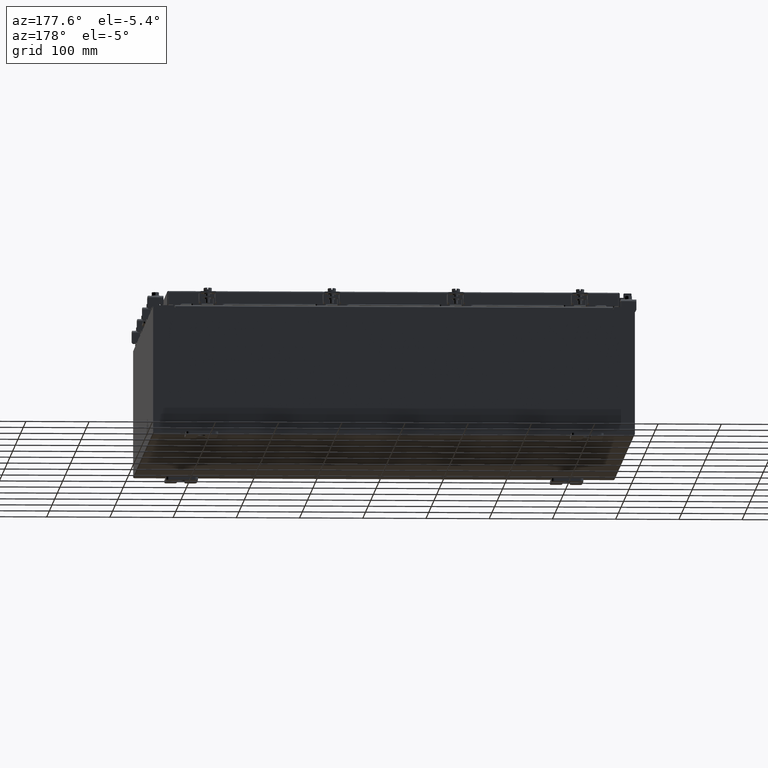
[diagram: clean part render]
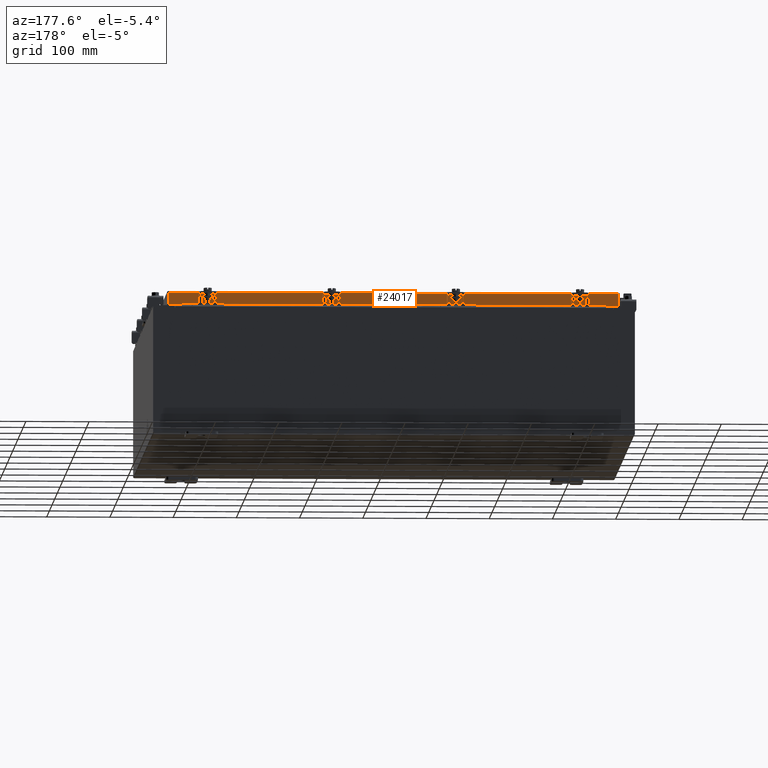
[diagram: same view with one face highlighted and labeled with its STEP entity id]
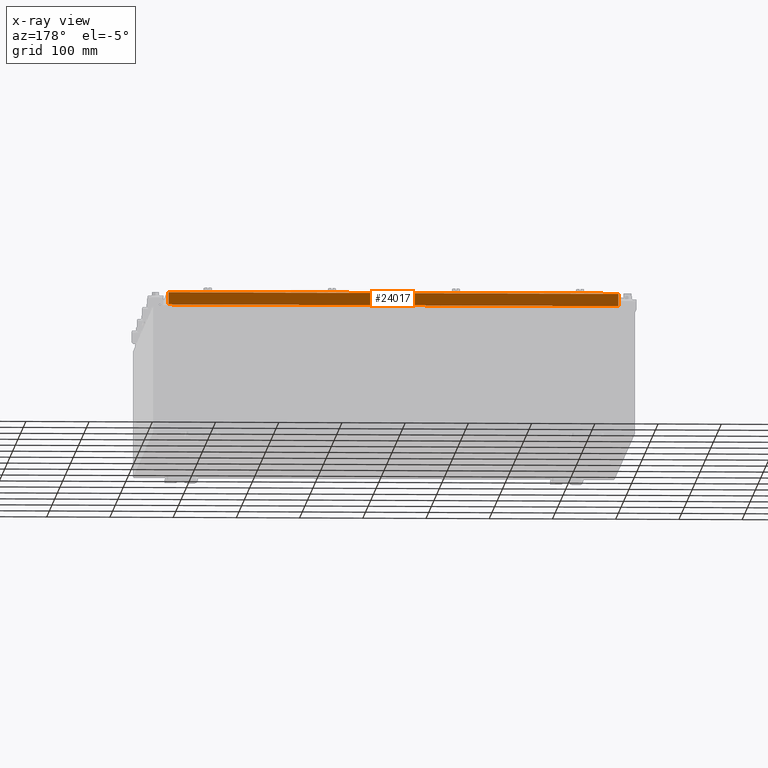
[diagram: x-ray of the same camera — body ghosted, the highlighted face saturated]
A machine part, auxiliary view. The second image highlights one B-rep face of the part: STEP entity #24017.
The next image is the same camera in x-ray: the body ghosted, the highlighted face saturated — about 0% of this face is hidden behind the body in this view.
In plain terms, the highlighted planar face has unit normal (0, -1, -0).
Its self-contained STEP definition (entity closure, byte-faithful):
#244 = EDGE_CURVE ( 'NONE', #9193, #8855, #17366, .T. ) ;
#469 = ORIENTED_EDGE ( 'NONE', *, *, #6053, .F. ) ;
#558 = CARTESIAN_POINT ( 'NONE',  ( -13.25515786437626500, 14.09399999999999200, -0.8500000000000054200 ) ) ;
#996 = LINE ( 'NONE', #3109, #20302 ) ;
#1132 = EDGE_CURVE ( 'NONE', #23903, #10713, #22019, .T. ) ;
#1895 = DIRECTION ( 'NONE',  ( 1.000000000000000000, -0.0000000000000000000, -0.0000000000000000000 ) ) ;
#1926 = AXIS2_PLACEMENT_3D ( 'NONE', #22876, #17322, #6147 ) ;
#2145 = VECTOR ( 'NONE', #1895, 39.37007874015748100 ) ;
#3057 = VECTOR ( 'NONE', #4403, 39.37007874015748100 ) ;
#3109 = CARTESIAN_POINT ( 'NONE',  ( -14.00515786437626900, 14.09399999999999900, -0.07470000000000015500 ) ) ;
#3848 = CARTESIAN_POINT ( 'NONE',  ( -14.09399999999999900, 14.09399999999999900, -0.08770000000000026400 ) ) ;
#4403 = DIRECTION ( 'NONE',  ( 0.0000000000000000000, 2.818880942772347100E-015, -1.000000000000000000 ) ) ;
#4991 = FACE_OUTER_BOUND ( 'NONE', #24162, .T. ) ;
#5056 = DIRECTION ( 'NONE',  ( 1.000000000000000000, 4.379057701015054300E-047, 1.259898677367511900E-016 ) ) ;
#6053 = EDGE_CURVE ( 'NONE', #7983, #19494, #996, .T. ) ;
#6147 = DIRECTION ( 'NONE',  ( 0.0000000000000000000, 2.818880942772347100E-015, -1.000000000000000000 ) ) ;
#7203 = CARTESIAN_POINT ( 'NONE',  ( 14.00515786437626500, 14.09399999999999900, -0.08770000000000026400 ) ) ;
#7381 = DIRECTION ( 'NONE',  ( 1.000000000000000000, 4.379057701015054300E-047, 1.259898677367511900E-016 ) ) ;
#7983 = VERTEX_POINT ( 'NONE', #20179 ) ;
#8855 = VERTEX_POINT ( 'NONE', #11531 ) ;
#9031 = LINE ( 'NONE', #3848, #23363 ) ;
#9083 = LINE ( 'NONE', #20461, #23412 ) ;
#9193 = VERTEX_POINT ( 'NONE', #7203 ) ;
#10601 = DIRECTION ( 'NONE',  ( -0.0000000000000000000, 2.818880942772347100E-015, -1.000000000000000000 ) ) ;
#10713 = VERTEX_POINT ( 'NONE', #20485 ) ;
#11417 = CARTESIAN_POINT ( 'NONE',  ( -13.25515786437626400, 14.09399999999999200, -0.8500000000000054200 ) ) ;
#11531 = CARTESIAN_POINT ( 'NONE',  ( 14.00515786437626500, 14.09400000000000100, -0.8499999999999999800 ) ) ;
#12517 = ORIENTED_EDGE ( 'NONE', *, *, #14223, .F. ) ;
#14223 = EDGE_CURVE ( 'NONE', #10713, #8855, #23075, .T. ) ;
#14456 = EDGE_CURVE ( 'NONE', #9193, #7983, #9031, .T. ) ;
#14991 = DIRECTION ( 'NONE',  ( -1.000000000000000000, -3.551504371455365500E-031, -9.680575543624972600E-046 ) ) ;
#15430 = PLANE ( 'NONE',  #1926 ) ;
#16571 = ORIENTED_EDGE ( 'NONE', *, *, #1132, .F. ) ;
#17322 = DIRECTION ( 'NONE',  ( 3.551504371455365500E-031, -1.000000000000000000, -2.818880942772347100E-015 ) ) ;
#17366 = LINE ( 'NONE', #20091, #3057 ) ;
#18044 = CARTESIAN_POINT ( 'NONE',  ( -14.09399999999999900, 14.09400000000000100, -0.8500000000000032000 ) ) ;
#18111 = VECTOR ( 'NONE', #5056, 39.37007874015748100 ) ;
#18546 = ORIENTED_EDGE ( 'NONE', *, *, #23780, .F. ) ;
#19187 = ORIENTED_EDGE ( 'NONE', *, *, #244, .T. ) ;
#19306 = CARTESIAN_POINT ( 'NONE',  ( -14.00515786437626900, 14.09400000000000100, -0.8500000000000032000 ) ) ;
#19494 = VERTEX_POINT ( 'NONE', #19306 ) ;
#20091 = CARTESIAN_POINT ( 'NONE',  ( 14.00515786437626900, 14.09399999999999900, 4.043135030623109600E-014 ) ) ;
#20179 = CARTESIAN_POINT ( 'NONE',  ( -14.00515786437626500, 14.09399999999999900, -0.08770000000000026400 ) ) ;
#20302 = VECTOR ( 'NONE', #10601, 39.37007874015748100 ) ;
#20461 = CARTESIAN_POINT ( 'NONE',  ( -14.09399999999999900, 14.09400000000000100, -0.8500000000000032000 ) ) ;
#20485 = CARTESIAN_POINT ( 'NONE',  ( 13.25515786437626500, 14.09399999999999200, -0.8500000000000054200 ) ) ;
#22019 = LINE ( 'NONE', #558, #2145 ) ;
#22876 = CARTESIAN_POINT ( 'NONE',  ( 0.0000000000000000000, 14.09399999999999900, 4.043135030623109600E-014 ) ) ;
#23075 = LINE ( 'NONE', #18044, #18111 ) ;
#23363 = VECTOR ( 'NONE', #14991, 39.37007874015748100 ) ;
#23412 = VECTOR ( 'NONE', #7381, 39.37007874015748100 ) ;
#23536 = ORIENTED_EDGE ( 'NONE', *, *, #14456, .F. ) ;
#23780 = EDGE_CURVE ( 'NONE', #19494, #23903, #9083, .T. ) ;
#23903 = VERTEX_POINT ( 'NONE', #11417 ) ;
#24017 = ADVANCED_FACE ( 'NONE', ( #4991 ), #15430, .F. ) ;
#24162 = EDGE_LOOP ( 'NONE', ( #23536, #19187, #12517, #16571, #18546, #469 ) ) ;